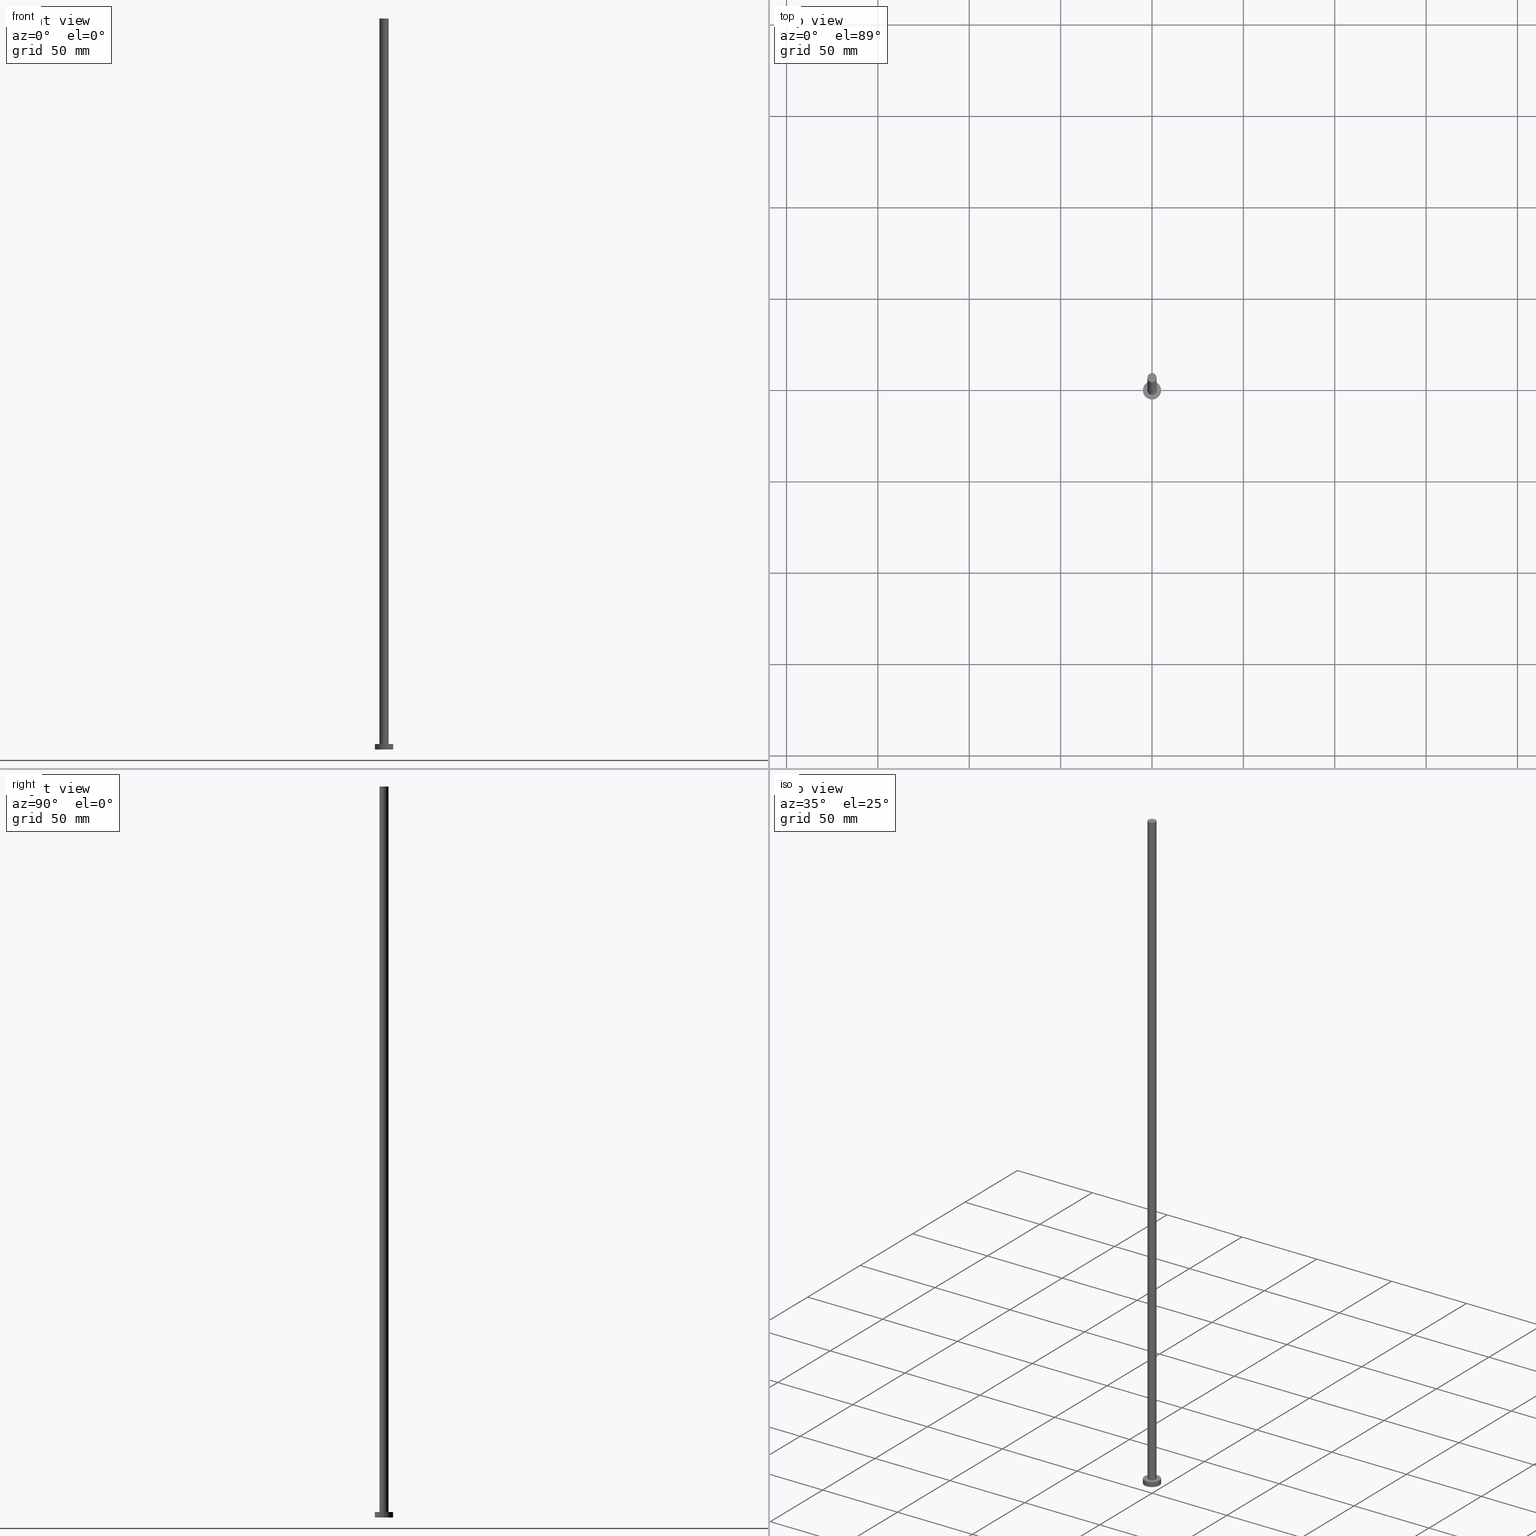
[diagram: canonical four-view strip — front | top / right | iso, engineering-drawing reading convention]
A machine part, canonical four-view strip (front | top / right | iso — engineering-drawing reading convention). The complete STEP part file that produces these views, byte-faithful:
ISO-10303-21;
HEADER;
FILE_DESCRIPTION (( 'STEP AP203' ),
    '1' );
FILE_NAME ('de3a.STEP',
    '2023-02-13T13:25:35',
    ( '' ),
    ( '' ),
    'SwSTEP 2.0',
    'SolidWorks 2019',
    '' );
FILE_SCHEMA (( 'CONFIG_CONTROL_DESIGN' ));
ENDSEC;

DATA;
#1 = EDGE_CURVE ( 'NONE', #74, #34, #201, .T. ) ;
#2 = SHAPE_DEFINITION_REPRESENTATION ( #167, #11 ) ;
#3 = ORGANIZATION ( 'NEUR�EN�', 'NEUR�EN�', '' ) ;
#4 = VERTEX_POINT ( 'NONE', #124 ) ;
#5 = AXIS2_PLACEMENT_3D ( 'NONE', #155, #70, #195 ) ;
#6 = EDGE_LOOP ( 'NONE', ( #236, #238 ) ) ;
#7 = COORDINATED_UNIVERSAL_TIME_OFFSET ( 1, 0, .AHEAD. ) ;
#8 = EDGE_LOOP ( 'NONE', ( #71, #77 ) ) ;
#9 = EDGE_CURVE ( 'NONE', #119, #4, #147, .T. ) ;
#10 = CIRCLE ( 'NONE', #144, 5.000000000000000000 ) ;
#11 = ADVANCED_BREP_SHAPE_REPRESENTATION ( 'de3a', ( #18, #62 ), #206 ) ;
#12 = ORIENTED_EDGE ( 'NONE', *, *, #26, .T. ) ;
#13 = LOCAL_TIME ( 14, 25, 35.00000000000000000, #184 ) ;
#14 = CARTESIAN_POINT ( 'NONE',  ( 5.000000000000000000, 6.123233995736766282E-16, 3.000000000000000000 ) ) ;
#15 = DATE_AND_TIME ( #217, #166 ) ;
#16 = DIRECTION ( 'NONE',  ( 1.000000000000000000, 0.000000000000000000, 0.000000000000000000 ) ) ;
#17 = AXIS2_PLACEMENT_3D ( 'NONE', #123, #203, #99 ) ;
#18 = MANIFOLD_SOLID_BREP ( 'P�idat vysunut�m3', #154 ) ;
#19 = FACE_OUTER_BOUND ( 'NONE', #178, .T. ) ;
#20 = EDGE_LOOP ( 'NONE', ( #39, #36 ) ) ;
#21 = FACE_BOUND ( 'NONE', #20, .T. ) ;
#22 = DIRECTION ( 'NONE',  ( 1.000000000000000000, 0.000000000000000000, 0.000000000000000000 ) ) ;
#23 = CARTESIAN_POINT ( 'NONE',  ( 0.000000000000000000, 0.000000000000000000, 3.000000000000000000 ) ) ;
#24 = DIRECTION ( 'NONE',  ( 1.000000000000000000, 0.000000000000000000, 0.000000000000000000 ) ) ;
#25 = LOCAL_TIME ( 14, 25, 35.00000000000000000, #7 ) ;
#26 = EDGE_CURVE ( 'NONE', #252, #34, #54, .T. ) ;
#27 = ORIENTED_EDGE ( 'NONE', *, *, #1, .T. ) ;
#28 = PERSON_AND_ORGANIZATION_ROLE ( 'creator' ) ;
#29 = AXIS2_PLACEMENT_3D ( 'NONE', #141, #183, #16 ) ;
#30 = APPROVAL_STATUS ( 'not_yet_approved' ) ;
#31 = DIRECTION ( 'NONE',  ( -1.000000000000000000, 0.000000000000000000, 0.000000000000000000 ) ) ;
#32 = DIRECTION ( 'NONE',  ( 1.000000000000000000, 0.000000000000000000, -0.000000000000000000 ) ) ;
#33 = EDGE_CURVE ( 'NONE', #194, #47, #198, .T. ) ;
#34 = VERTEX_POINT ( 'NONE', #101 ) ;
#35 = DATE_AND_TIME ( #182, #13 ) ;
#36 = ORIENTED_EDGE ( 'NONE', *, *, #113, .F. ) ;
#37 = VECTOR ( 'NONE', #191, 1000.000000000000000 ) ;
#38 = DESIGN_CONTEXT ( 'detailed design', #174, 'design' ) ;
#39 = ORIENTED_EDGE ( 'NONE', *, *, #26, .F. ) ;
#40 = DIRECTION ( 'NONE',  ( 0.000000000000000000, 0.000000000000000000, 1.000000000000000000 ) ) ;
#41 = CARTESIAN_POINT ( 'NONE',  ( 0.000000000000000000, 0.000000000000000000, 400.0000000000000000 ) ) ;
#42 = SECURITY_CLASSIFICATION ( '', '', #137 ) ;
#43 = CARTESIAN_POINT ( 'NONE',  ( 5.000000000000000000, 6.123233995736766282E-16, 0.000000000000000000 ) ) ;
#44 = ADVANCED_FACE ( 'NONE', ( #205 ), #75, .F. ) ;
#45 = APPROVAL_DATE_TIME ( #230, #66 ) ;
#46 = DATE_AND_TIME ( #92, #25 ) ;
#47 = VERTEX_POINT ( 'NONE', #117 ) ;
#48 = AXIS2_PLACEMENT_3D ( 'NONE', #88, #169, #67 ) ;
#49 = FACE_OUTER_BOUND ( 'NONE', #108, .T. ) ;
#50 = ORIENTED_EDGE ( 'NONE', *, *, #33, .T. ) ;
#51 = CYLINDRICAL_SURFACE ( 'NONE', #181, 5.000000000000000000 ) ;
#52 = EDGE_LOOP ( 'NONE', ( #115, #27, #93, #255 ) ) ;
#53 = ORIENTED_EDGE ( 'NONE', *, *, #59, .F. ) ;
#54 = CIRCLE ( 'NONE', #65, 2.500000000000000000 ) ;
#55 = LOCAL_TIME ( 14, 25, 35.00000000000000000, #229 ) ;
#56 = PERSON_AND_ORGANIZATION ( #107, #3 ) ;
#57 = FACE_OUTER_BOUND ( 'NONE', #250, .T. ) ;
#58 = CARTESIAN_POINT ( 'NONE',  ( 2.500000000000000000, 3.061616997868383141E-16, 400.0000000000000000 ) ) ;
#59 = EDGE_CURVE ( 'NONE', #4, #194, #199, .T. ) ;
#60 = COORDINATED_UNIVERSAL_TIME_OFFSET ( 1, 0, .AHEAD. ) ;
#61 = DIRECTION ( 'NONE',  ( -0.000000000000000000, -0.000000000000000000, -1.000000000000000000 ) ) ;
#62 = AXIS2_PLACEMENT_3D ( 'NONE', #94, #179, #152 ) ;
#63 = LINE ( 'NONE', #103, #204 ) ;
#64 = CARTESIAN_POINT ( 'NONE',  ( -2.500000000000000000, 0.000000000000000000, 400.0000000000000000 ) ) ;
#65 = AXIS2_PLACEMENT_3D ( 'NONE', #81, #220, #78 ) ;
#66 = APPROVAL ( #151, 'NEUR�EN�' ) ;
#67 = DIRECTION ( 'NONE',  ( -1.000000000000000000, 0.000000000000000000, 0.000000000000000000 ) ) ;
#68 = UNCERTAINTY_MEASURE_WITH_UNIT (LENGTH_MEASURE( 1.000000000000000082E-05 ), #215, 'distance_accuracy_value', 'NONE');
#69 = ORIENTED_EDGE ( 'NONE', *, *, #9, .T. ) ;
#70 = DIRECTION ( 'NONE',  ( 0.000000000000000000, 0.000000000000000000, 1.000000000000000000 ) ) ;
#71 = ORIENTED_EDGE ( 'NONE', *, *, #76, .T. ) ;
#72 = PERSON_AND_ORGANIZATION_ROLE ( 'design_owner' ) ;
#73 = PLANE ( 'NONE',  #5 ) ;
#74 = VERTEX_POINT ( 'NONE', #58 ) ;
#75 = PLANE ( 'NONE',  #83 ) ;
#76 = EDGE_CURVE ( 'NONE', #135, #74, #213, .T. ) ;
#77 = ORIENTED_EDGE ( 'NONE', *, *, #209, .T. ) ;
#78 = DIRECTION ( 'NONE',  ( 1.000000000000000000, 0.000000000000000000, 0.000000000000000000 ) ) ;
#79 = CIRCLE ( 'NONE', #156, 5.000000000000000000 ) ;
#80 = DIRECTION ( 'NONE',  ( 0.000000000000000000, 0.000000000000000000, 1.000000000000000000 ) ) ;
#81 = CARTESIAN_POINT ( 'NONE',  ( 0.000000000000000000, 0.000000000000000000, 3.000000000000000000 ) ) ;
#82 = DIRECTION ( 'NONE',  ( 0.000000000000000000, 0.000000000000000000, 1.000000000000000000 ) ) ;
#83 = AXIS2_PLACEMENT_3D ( 'NONE', #161, #218, #32 ) ;
#84 = APPROVAL_PERSON_ORGANIZATION ( #216, #187, #185 ) ;
#85 = ADVANCED_FACE ( 'NONE', ( #57 ), #140, .T. ) ;
#86 = ADVANCED_FACE ( 'NONE', ( #19 ), #100, .T. ) ;
#87 = AXIS2_PLACEMENT_3D ( 'NONE', #210, #82, #246 ) ;
#88 = CARTESIAN_POINT ( 'NONE',  ( 0.000000000000000000, 0.000000000000000000, 3.000000000000000000 ) ) ;
#89 = APPROVAL_PERSON_ORGANIZATION ( #247, #66, #248 ) ;
#90 = CC_DESIGN_PERSON_AND_ORGANIZATION_ASSIGNMENT ( #240, #237, ( #42 ) ) ;
#91 = ORIENTED_EDGE ( 'NONE', *, *, #59, .T. ) ;
#92 = CALENDAR_DATE ( 2023, 13, 2 ) ;
#93 = ORIENTED_EDGE ( 'NONE', *, *, #113, .T. ) ;
#94 = CARTESIAN_POINT ( 'NONE',  ( 0.000000000000000000, 0.000000000000000000, 0.000000000000000000 ) ) ;
#95 = DIRECTION ( 'NONE',  ( -0.000000000000000000, -0.000000000000000000, -1.000000000000000000 ) ) ;
#96 = PERSON_AND_ORGANIZATION_ROLE ( 'design_supplier' ) ;
#97 = EDGE_LOOP ( 'NONE', ( #69, #180 ) ) ;
#98 = APPROVAL ( #139, 'NEUR�EN�' ) ;
#99 = DIRECTION ( 'NONE',  ( -1.000000000000000000, 0.000000000000000000, 0.000000000000000000 ) ) ;
#100 = CYLINDRICAL_SURFACE ( 'NONE', #48, 5.000000000000000000 ) ;
#101 = CARTESIAN_POINT ( 'NONE',  ( 2.500000000000000000, 3.061616997868383141E-16, 3.000000000000000000 ) ) ;
#102 = FACE_OUTER_BOUND ( 'NONE', #97, .T. ) ;
#103 = CARTESIAN_POINT ( 'NONE',  ( -5.000000000000000000, 0.000000000000000000, 3.000000000000000000 ) ) ;
#104 = PRODUCT_RELATED_PRODUCT_CATEGORY ( 'detail', '', ( #244 ) ) ;
#105 = DIRECTION ( 'NONE',  ( 0.000000000000000000, 0.000000000000000000, 1.000000000000000000 ) ) ;
#106 = DIRECTION ( 'NONE',  ( -0.000000000000000000, -0.000000000000000000, -1.000000000000000000 ) ) ;
#107 = PERSON ( 'NEUR�EN�', 'NEUR�EN�', 'NEUR�EN�', ('NEUR�EN�'), ('NEUR�EN�'), ('NEUR�EN�') ) ;
#108 = EDGE_LOOP ( 'NONE', ( #136, #91, #50, #132 ) ) ;
#109 = FACE_OUTER_BOUND ( 'NONE', #8, .T. ) ;
#110 = EDGE_CURVE ( 'NONE', #119, #47, #63, .T. ) ;
#111 = ORIENTED_EDGE ( 'NONE', *, *, #9, .F. ) ;
#112 = CC_DESIGN_APPROVAL ( #66, ( #196 ) ) ;
#113 = EDGE_CURVE ( 'NONE', #34, #252, #133, .T. ) ;
#114 = PERSON_AND_ORGANIZATION ( #107, #3 ) ;
#115 = ORIENTED_EDGE ( 'NONE', *, *, #209, .F. ) ;
#116 = DATE_AND_TIME ( #165, #228 ) ;
#117 = CARTESIAN_POINT ( 'NONE',  ( -5.000000000000000000, 0.000000000000000000, 0.000000000000000000 ) ) ;
#118 = CC_DESIGN_APPROVAL ( #98, ( #42 ) ) ;
#119 = VERTEX_POINT ( 'NONE', #225 ) ;
#120 = CARTESIAN_POINT ( 'NONE',  ( 0.000000000000000000, 0.000000000000000000, 3.000000000000000000 ) ) ;
#121 = COORDINATED_UNIVERSAL_TIME_OFFSET ( 1, 0, .AHEAD. ) ;
#122 = AXIS2_PLACEMENT_3D ( 'NONE', #242, #207, #186 ) ;
#123 = CARTESIAN_POINT ( 'NONE',  ( 0.000000000000000000, 0.000000000000000000, 400.0000000000000000 ) ) ;
#124 = CARTESIAN_POINT ( 'NONE',  ( 5.000000000000000000, 6.123233995736766282E-16, 3.000000000000000000 ) ) ;
#125 = DIRECTION ( 'NONE',  ( 1.000000000000000000, 0.000000000000000000, 0.000000000000000000 ) ) ;
#126 = DIRECTION ( 'NONE',  ( 0.000000000000000000, 0.000000000000000000, 1.000000000000000000 ) ) ;
#127 = DIRECTION ( 'NONE',  ( 0.000000000000000000, 0.000000000000000000, 1.000000000000000000 ) ) ;
#128 = FACE_OUTER_BOUND ( 'NONE', #52, .T. ) ;
#129 = CC_DESIGN_DATE_AND_TIME_ASSIGNMENT ( #46, #131, ( #196 ) ) ;
#130 = PRODUCT_DEFINITION_FORMATION_WITH_SPECIFIED_SOURCE ( 'LIBOVOLN�', '', #244, .NOT_KNOWN. ) ;
#131 = DATE_TIME_ROLE ( 'creation_date' ) ;
#132 = ORIENTED_EDGE ( 'NONE', *, *, #110, .F. ) ;
#133 = CIRCLE ( 'NONE', #87, 2.500000000000000000 ) ;
#134 = PERSON_AND_ORGANIZATION ( #107, #3 ) ;
#135 = VERTEX_POINT ( 'NONE', #168 ) ;
#136 = ORIENTED_EDGE ( 'NONE', *, *, #175, .F. ) ;
#137 = SECURITY_CLASSIFICATION_LEVEL ( 'unclassified' ) ;
#138 = CC_DESIGN_APPROVAL ( #187, ( #130 ) ) ;
#139 = APPROVAL_STATUS ( 'not_yet_approved' ) ;
#140 = CYLINDRICAL_SURFACE ( 'NONE', #17, 2.500000000000000000 ) ;
#141 = CARTESIAN_POINT ( 'NONE',  ( 0.000000000000000000, 0.000000000000000000, 400.0000000000000000 ) ) ;
#142 = APPROVAL_DATE_TIME ( #116, #187 ) ;
#143 = VECTOR ( 'NONE', #61, 1000.000000000000000 ) ;
#144 = AXIS2_PLACEMENT_3D ( 'NONE', #223, #40, #125 ) ;
#145 = CARTESIAN_POINT ( 'NONE',  ( 0.000000000000000000, 0.000000000000000000, 0.000000000000000000 ) ) ;
#146 = CC_DESIGN_PERSON_AND_ORGANIZATION_ASSIGNMENT ( #254, #96, ( #130 ) ) ;
#147 = CIRCLE ( 'NONE', #188, 5.000000000000000000 ) ;
#148 = CC_DESIGN_PERSON_AND_ORGANIZATION_ASSIGNMENT ( #134, #28, ( #196 ) ) ;
#149 = ORIENTED_EDGE ( 'NONE', *, *, #172, .T. ) ;
#150 = CC_DESIGN_SECURITY_CLASSIFICATION ( #42, ( #130 ) ) ;
#151 = APPROVAL_STATUS ( 'not_yet_approved' ) ;
#152 = DIRECTION ( 'NONE',  ( 1.000000000000000000, 0.000000000000000000, 0.000000000000000000 ) ) ;
#153 = CALENDAR_DATE ( 2023, 13, 2 ) ;
#154 = CLOSED_SHELL ( 'NONE', ( #226, #239, #86, #190, #44, #85, #241 ) ) ;
#155 = CARTESIAN_POINT ( 'NONE',  ( 0.000000000000000000, 0.000000000000000000, 400.0000000000000000 ) ) ;
#156 = AXIS2_PLACEMENT_3D ( 'NONE', #145, #105, #24 ) ;
#157 = PERSON_AND_ORGANIZATION ( #107, #3 ) ;
#158 = CARTESIAN_POINT ( 'NONE',  ( 2.500000000000000000, 3.061616997868383141E-16, 400.0000000000000000 ) ) ;
#159 = EDGE_CURVE ( 'NONE', #135, #252, #212, .T. ) ;
#160 = PERSON_AND_ORGANIZATION_ROLE ( 'creator' ) ;
#161 = CARTESIAN_POINT ( 'NONE',  ( 0.000000000000000000, 0.000000000000000000, 0.000000000000000000 ) ) ;
#162 = AXIS2_PLACEMENT_3D ( 'NONE', #23, #126, #208 ) ;
#163 = CC_DESIGN_PERSON_AND_ORGANIZATION_ASSIGNMENT ( #114, #72, ( #244 ) ) ;
#164 = DIRECTION ( 'NONE',  ( 1.000000000000000000, 0.000000000000000000, 0.000000000000000000 ) ) ;
#165 = CALENDAR_DATE ( 2023, 13, 2 ) ;
#166 = LOCAL_TIME ( 14, 25, 35.00000000000000000, #121 ) ;
#167 = PRODUCT_DEFINITION_SHAPE ( 'NONE', 'NONE',  #196 ) ;
#168 = CARTESIAN_POINT ( 'NONE',  ( -2.500000000000000000, 0.000000000000000000, 400.0000000000000000 ) ) ;
#169 = DIRECTION ( 'NONE',  ( -0.000000000000000000, -0.000000000000000000, -1.000000000000000000 ) ) ;
#170 = CC_DESIGN_DATE_AND_TIME_ASSIGNMENT ( #35, #200, ( #42 ) ) ;
#171 = APPLICATION_PROTOCOL_DEFINITION ( 'international standard', 'config_control_design', 1994, #174 ) ;
#172 = EDGE_CURVE ( 'NONE', #47, #194, #79, .T. ) ;
#173 = MECHANICAL_CONTEXT ( 'NONE', #245, 'mechanical' ) ;
#174 = APPLICATION_CONTEXT ( 'configuration controlled 3d designs of mechanical parts and assemblies' ) ;
#175 = EDGE_CURVE ( 'NONE', #4, #119, #10, .T. ) ;
#176 = CIRCLE ( 'NONE', #253, 2.500000000000000000 ) ;
#177 =( NAMED_UNIT ( * ) PLANE_ANGLE_UNIT ( ) SI_UNIT ( $, .RADIAN. ) );
#178 = EDGE_LOOP ( 'NONE', ( #53, #111, #243, #149 ) ) ;
#179 = DIRECTION ( 'NONE',  ( 0.000000000000000000, 0.000000000000000000, 1.000000000000000000 ) ) ;
#180 = ORIENTED_EDGE ( 'NONE', *, *, #175, .T. ) ;
#181 = AXIS2_PLACEMENT_3D ( 'NONE', #251, #232, #227 ) ;
#182 = CALENDAR_DATE ( 2023, 13, 2 ) ;
#183 = DIRECTION ( 'NONE',  ( 0.000000000000000000, 0.000000000000000000, 1.000000000000000000 ) ) ;
#184 = COORDINATED_UNIVERSAL_TIME_OFFSET ( 1, 0, .AHEAD. ) ;
#185 = APPROVAL_ROLE ( '' ) ;
#186 = DIRECTION ( 'NONE',  ( 1.000000000000000000, 0.000000000000000000, 0.000000000000000000 ) ) ;
#187 = APPROVAL ( #30, 'NEUR�EN�' ) ;
#188 = AXIS2_PLACEMENT_3D ( 'NONE', #120, #80, #164 ) ;
#189 = DIRECTION ( 'NONE',  ( -0.000000000000000000, -0.000000000000000000, -1.000000000000000000 ) ) ;
#190 = ADVANCED_FACE ( 'NONE', ( #21, #102 ), #224, .T. ) ;
#191 = DIRECTION ( 'NONE',  ( -0.000000000000000000, -0.000000000000000000, -1.000000000000000000 ) ) ;
#192 = CARTESIAN_POINT ( 'NONE',  ( 0.000000000000000000, 0.000000000000000000, 400.0000000000000000 ) ) ;
#193 =( NAMED_UNIT ( * ) SI_UNIT ( $, .STERADIAN. ) SOLID_ANGLE_UNIT ( ) );
#194 = VERTEX_POINT ( 'NONE', #43 ) ;
#195 = DIRECTION ( 'NONE',  ( 1.000000000000000000, 0.000000000000000000, -0.000000000000000000 ) ) ;
#196 = PRODUCT_DEFINITION ( 'NEZN�M�', '', #130, #38 ) ;
#197 = APPROVAL_ROLE ( '' ) ;
#198 = CIRCLE ( 'NONE', #122, 5.000000000000000000 ) ;
#199 = LINE ( 'NONE', #14, #234 ) ;
#200 = DATE_TIME_ROLE ( 'classification_date' ) ;
#201 = LINE ( 'NONE', #158, #143 ) ;
#202 = APPROVAL_DATE_TIME ( #15, #98 ) ;
#203 = DIRECTION ( 'NONE',  ( -0.000000000000000000, -0.000000000000000000, -1.000000000000000000 ) ) ;
#204 = VECTOR ( 'NONE', #189, 1000.000000000000000 ) ;
#205 = FACE_OUTER_BOUND ( 'NONE', #6, .T. ) ;
#206 =( GEOMETRIC_REPRESENTATION_CONTEXT ( 3 ) GLOBAL_UNCERTAINTY_ASSIGNED_CONTEXT ( ( #68 ) ) GLOBAL_UNIT_ASSIGNED_CONTEXT ( ( #215, #177, #193 ) ) REPRESENTATION_CONTEXT ( 'NONE', 'WORKASPACE' ) );
#207 = DIRECTION ( 'NONE',  ( 0.000000000000000000, 0.000000000000000000, 1.000000000000000000 ) ) ;
#208 = DIRECTION ( 'NONE',  ( 1.000000000000000000, 0.000000000000000000, -0.000000000000000000 ) ) ;
#209 = EDGE_CURVE ( 'NONE', #74, #135, #176, .T. ) ;
#210 = CARTESIAN_POINT ( 'NONE',  ( 0.000000000000000000, 0.000000000000000000, 3.000000000000000000 ) ) ;
#211 = CYLINDRICAL_SURFACE ( 'NONE', #249, 2.500000000000000000 ) ;
#212 = LINE ( 'NONE', #64, #37 ) ;
#213 = CIRCLE ( 'NONE', #29, 2.500000000000000000 ) ;
#214 = APPLICATION_PROTOCOL_DEFINITION ( 'international standard', 'config_control_design', 1994, #245 ) ;
#215 =( LENGTH_UNIT ( ) NAMED_UNIT ( * ) SI_UNIT ( .MILLI., .METRE. ) );
#216 = PERSON_AND_ORGANIZATION ( #107, #3 ) ;
#217 = CALENDAR_DATE ( 2023, 13, 2 ) ;
#218 = DIRECTION ( 'NONE',  ( 0.000000000000000000, 0.000000000000000000, 1.000000000000000000 ) ) ;
#219 = APPROVAL_PERSON_ORGANIZATION ( #56, #98, #197 ) ;
#220 = DIRECTION ( 'NONE',  ( 0.000000000000000000, 0.000000000000000000, 1.000000000000000000 ) ) ;
#221 = ORIENTED_EDGE ( 'NONE', *, *, #159, .T. ) ;
#222 = CC_DESIGN_PERSON_AND_ORGANIZATION_ASSIGNMENT ( #157, #160, ( #130 ) ) ;
#223 = CARTESIAN_POINT ( 'NONE',  ( 0.000000000000000000, 0.000000000000000000, 3.000000000000000000 ) ) ;
#224 = PLANE ( 'NONE',  #162 ) ;
#225 = CARTESIAN_POINT ( 'NONE',  ( -5.000000000000000000, 0.000000000000000000, 3.000000000000000000 ) ) ;
#226 = ADVANCED_FACE ( 'NONE', ( #128 ), #211, .T. ) ;
#227 = DIRECTION ( 'NONE',  ( -1.000000000000000000, 0.000000000000000000, 0.000000000000000000 ) ) ;
#228 = LOCAL_TIME ( 14, 25, 35.00000000000000000, #60 ) ;
#229 = COORDINATED_UNIVERSAL_TIME_OFFSET ( 1, 0, .AHEAD. ) ;
#230 = DATE_AND_TIME ( #153, #55 ) ;
#231 = ORIENTED_EDGE ( 'NONE', *, *, #76, .F. ) ;
#232 = DIRECTION ( 'NONE',  ( -0.000000000000000000, -0.000000000000000000, -1.000000000000000000 ) ) ;
#233 = ORIENTED_EDGE ( 'NONE', *, *, #1, .F. ) ;
#234 = VECTOR ( 'NONE', #95, 1000.000000000000000 ) ;
#235 = CARTESIAN_POINT ( 'NONE',  ( -2.500000000000000000, 0.000000000000000000, 3.000000000000000000 ) ) ;
#236 = ORIENTED_EDGE ( 'NONE', *, *, #172, .F. ) ;
#237 = PERSON_AND_ORGANIZATION_ROLE ( 'classification_officer' ) ;
#238 = ORIENTED_EDGE ( 'NONE', *, *, #33, .F. ) ;
#239 = ADVANCED_FACE ( 'NONE', ( #49 ), #51, .T. ) ;
#240 = PERSON_AND_ORGANIZATION ( #107, #3 ) ;
#241 = ADVANCED_FACE ( 'NONE', ( #109 ), #73, .T. ) ;
#242 = CARTESIAN_POINT ( 'NONE',  ( 0.000000000000000000, 0.000000000000000000, 0.000000000000000000 ) ) ;
#243 = ORIENTED_EDGE ( 'NONE', *, *, #110, .T. ) ;
#244 = PRODUCT ( 'de3a', 'de3a', '', ( #173 ) ) ;
#245 = APPLICATION_CONTEXT ( 'configuration controlled 3d designs of mechanical parts and assemblies' ) ;
#246 = DIRECTION ( 'NONE',  ( 1.000000000000000000, 0.000000000000000000, 0.000000000000000000 ) ) ;
#247 = PERSON_AND_ORGANIZATION ( #107, #3 ) ;
#248 = APPROVAL_ROLE ( '' ) ;
#249 = AXIS2_PLACEMENT_3D ( 'NONE', #192, #106, #31 ) ;
#250 = EDGE_LOOP ( 'NONE', ( #233, #231, #221, #12 ) ) ;
#251 = CARTESIAN_POINT ( 'NONE',  ( 0.000000000000000000, 0.000000000000000000, 3.000000000000000000 ) ) ;
#252 = VERTEX_POINT ( 'NONE', #235 ) ;
#253 = AXIS2_PLACEMENT_3D ( 'NONE', #41, #127, #22 ) ;
#254 = PERSON_AND_ORGANIZATION ( #107, #3 ) ;
#255 = ORIENTED_EDGE ( 'NONE', *, *, #159, .F. ) ;
ENDSEC;
END-ISO-10303-21;
